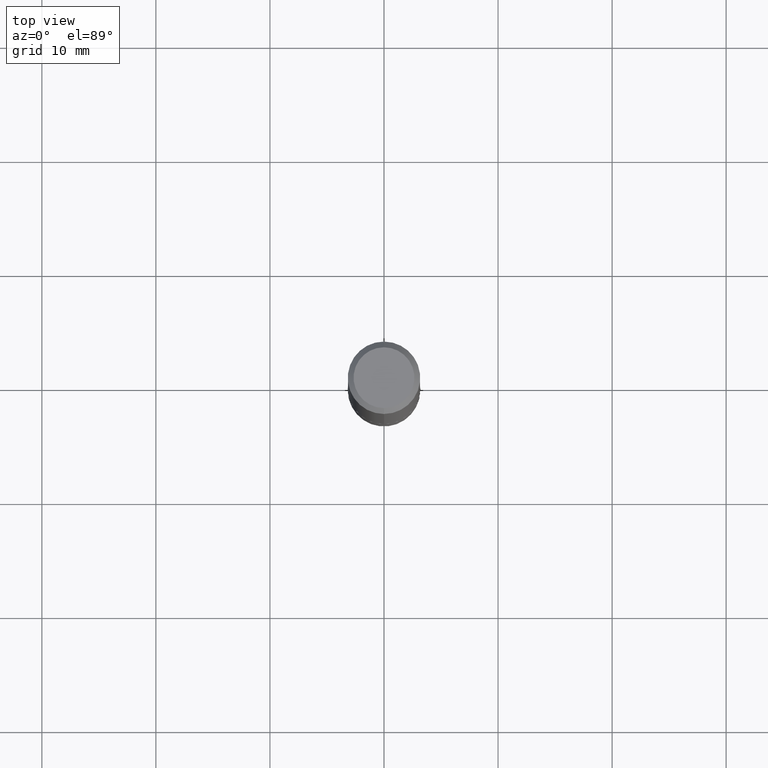
[diagram: clean part render]
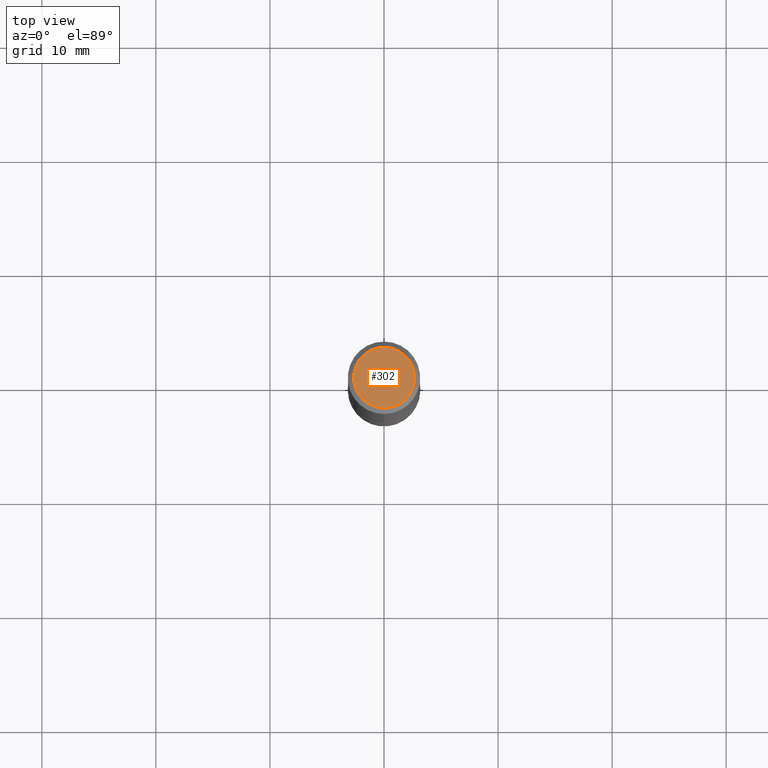
[diagram: same view with one face highlighted and labeled with its STEP entity id]
A machine part, top view. The second image highlights one B-rep face of the part: STEP entity #302.
In plain terms, the highlighted planar face has unit normal (0, -0, -1).
Its self-contained STEP definition (entity closure, byte-faithful):
#8 = CIRCLE ( 'NONE', #136, 0.1049999999999999406 ) ;
#109 = EDGE_CURVE ( 'NONE', #351, #267, #8, .T. ) ;
#116 = FACE_OUTER_BOUND ( 'NONE', #160, .T. ) ;
#118 = AXIS2_PLACEMENT_3D ( 'NONE', #407, #369, #206 ) ;
#126 = DIRECTION ( 'NONE',  ( -6.982962677686265922E-15, -1.000000000000000000, 3.491396681723780295E-15 ) ) ;
#136 = AXIS2_PLACEMENT_3D ( 'NONE', #388, #181, #126 ) ;
#141 = CIRCLE ( 'NONE', #364, 0.1049999999999999406 ) ;
#144 = EDGE_CURVE ( 'NONE', #267, #351, #141, .T. ) ;
#160 = EDGE_LOOP ( 'NONE', ( #260, #257 ) ) ;
#181 = DIRECTION ( 'NONE',  ( -2.445527921935629516E-29, 3.491396681723780295E-15, 1.000000000000000000 ) ) ;
#206 = DIRECTION ( 'NONE',  ( 6.982962677686265922E-15, 1.000000000000000000, -3.491396681723780689E-15 ) ) ;
#217 = DIRECTION ( 'NONE',  ( -6.982962677686265922E-15, -1.000000000000000000, 3.491396681723780295E-15 ) ) ;
#240 = PLANE ( 'NONE',  #118 ) ;
#253 = CARTESIAN_POINT ( 'NONE',  ( -1.356822259440641185E-45, 1.937088794533382726E-31, 5.548177337377198142E-17 ) ) ;
#257 = ORIENTED_EDGE ( 'NONE', *, *, #144, .T. ) ;
#260 = ORIENTED_EDGE ( 'NONE', *, *, #109, .T. ) ;
#267 = VERTEX_POINT ( 'NONE', #373 ) ;
#276 = CARTESIAN_POINT ( 'NONE',  ( 8.030407079339205337E-16, 0.1049999999999999406, -3.111148782072246978E-16 ) ) ;
#302 = ADVANCED_FACE ( 'NONE', ( #116 ), #240, .F. ) ;
#351 = VERTEX_POINT ( 'NONE', #276 ) ;
#364 = AXIS2_PLACEMENT_3D ( 'NONE', #253, #383, #217 ) ;
#369 = DIRECTION ( 'NONE',  ( 2.445527921935628955E-29, -3.491396681723780689E-15, -1.000000000000000000 ) ) ;
#373 = CARTESIAN_POINT ( 'NONE',  ( -7.889572697437255223E-16, -0.1049999999999999406, 4.220784249547687223E-16 ) ) ;
#383 = DIRECTION ( 'NONE',  ( -2.445527921935629516E-29, 3.491396681723780295E-15, 1.000000000000000000 ) ) ;
#388 = CARTESIAN_POINT ( 'NONE',  ( -1.356822259440641185E-45, 1.937088794533382726E-31, 5.548177337377198142E-17 ) ) ;
#407 = CARTESIAN_POINT ( 'NONE',  ( 7.332110811570575313E-16, 0.1049999999999999406, -3.388557648941107286E-16 ) ) ;